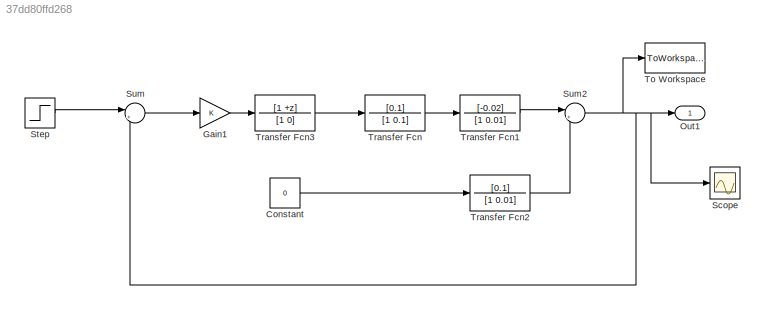
MODEL slx_37dd80ffd268
KIND model
BLOCK [Constant] Constant
  Value = 0
BLOCK [Gain] Gain1
  OutDataTypeStr = Inherit: Inherit via internal rule
  ParamDataTypeStr = Inherit: Inherit via internal rule
  SaturateOnIntegerOverflow = off
BLOCK [Outport] Out1
  IconDisplay = Port number
BLOCK [Scope] Scope
  Floating = off
  NumInputPorts = 1
  Ports = [1]
  ShowLegends = off
BLOCK [Step] Step
  SampleTime = 0
BLOCK [Sum] Sum
  IconShape = round
  InputSameDT = off
  Inputs = |+-
  OutDataTypeStr = Inherit: Inherit via internal rule
  Ports = [2, 1]
  SaturateOnIntegerOverflow = off
BLOCK [Sum] Sum2
  IconShape = round
  InputSameDT = off
  Inputs = |++
  OutDataTypeStr = Inherit: Inherit via internal rule
  Ports = [2, 1]
  SaturateOnIntegerOverflow = off
BLOCK [ToWorkspace] To Workspace
  FixptAsFi = on
  MaxDataPoints = inf
  Ports = [1]
  SampleTime = -1
  Save2DSignal = 3-D array (concatenate along third dimension)
  SaveFormat = Timeseries
  VariableName = simout
BLOCK [TransferFcn] Transfer Fcn
  Denominator = [1 0.1]
  Numerator = [0.1]
BLOCK [TransferFcn] Transfer Fcn1
  Denominator = [1 0.01]
  Numerator = [-0.02]
BLOCK [TransferFcn] Transfer Fcn2
  Denominator = [1 0.01]
  Numerator = [0.1]
BLOCK [TransferFcn] Transfer Fcn3
  Denominator = [1 0]
  Numerator = [1 +z]
LINE Constant:1 -> Transfer Fcn2:1
LINE Gain1:1 -> Transfer Fcn3:1
LINE Step:1 -> Sum:1
NET Sum2:1 -> Out1:1, Scope:1, Sum:2, To Workspace:1
LINE Sum:1 -> Gain1:1
LINE Transfer Fcn1:1 -> Sum2:1
LINE Transfer Fcn2:1 -> Sum2:2
LINE Transfer Fcn3:1 -> Transfer Fcn:1
LINE Transfer Fcn:1 -> Transfer Fcn1:1
note: NET lines group one-source signal fan-out (src -> all destinations, sorted); 1:1 wires keep LINE
